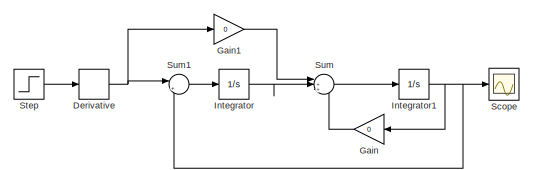
[diagram: root canvas - part 1/2, middle left region]
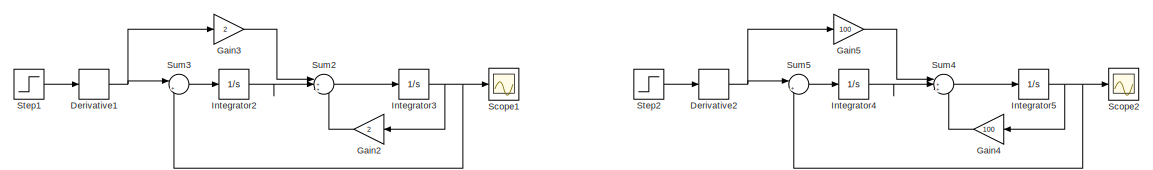
[diagram: root canvas - part 2/2, middle right region]
MODEL slx_f3005081a83c
KIND model
CONFIG AbsTol = auto
CONFIG EnableMultiTasking = off
CONFIG FixedStep = auto
CONFIG MaxStep = auto
CONFIG MinStep = auto
CONFIG RelTol = 1e-3
CONFIG SampleTimeConstraint = Unconstrained
CONFIG SolverName = VariableStepAuto
CONFIG StartTime = 0.0
CONFIG StopTime = 1
BLOCK [Derivative] Derivative
BLOCK [Derivative] Derivative1
BLOCK [Derivative] Derivative2
BLOCK [Gain] Gain
  Gain = 0
  NameLocation = top
BLOCK [Gain] Gain1
  Gain = 0
BLOCK [Gain] Gain2
  Gain = 2
  NameLocation = top
BLOCK [Gain] Gain3
  Gain = 2
BLOCK [Gain] Gain4
  Gain = 100
  NameLocation = top
BLOCK [Gain] Gain5
  Gain = 100
BLOCK [Integrator] Integrator
  Ports = [1, 1]
BLOCK [Integrator] Integrator1
  Ports = [1, 1]
BLOCK [Integrator] Integrator2
  Ports = [1, 1]
BLOCK [Integrator] Integrator3
  Ports = [1, 1]
BLOCK [Integrator] Integrator4
  Ports = [1, 1]
BLOCK [Integrator] Integrator5
  Ports = [1, 1]
BLOCK [Scope] Scope
  Floating = off
  NumInputPorts = 1
  Ports = [1]
  ScopeSpecificationString = Simulink.scopes.TimeScopeBlockCfg('CurrentConfiguration', extmgr.ConfigurationSet(extmgr.Configuration('Core','General UI',true),extmgr.Configuration('Core','Source UI',true),extmgr.Configuration('Sources','WiredSimulink',true),extmgr.Configuration('Visuals','Time Domain',true,'SerializedDisplays',{struct('MinYLimReal','-0.0084','MaxYLimReal','0.07562','YLabelReal','','MinYLimMag','0.00000','MaxYL...<+1363ch>
BLOCK [Scope] Scope1
  Floating = off
  NumInputPorts = 1
  Ports = [1]
  ScopeSpecificationString = Simulink.scopes.TimeScopeBlockCfg('CurrentConfiguration', extmgr.ConfigurationSet(extmgr.Configuration('Core','General UI',true),extmgr.Configuration('Core','Source UI',true),extmgr.Configuration('Sources','WiredSimulink',true,'DataLoggingVariableName','ScopeData1'),extmgr.Configuration('Visuals','Time Domain',true,'SerializedDisplays',{struct('MinYLimReal','-0.01998','MaxYLimReal','0.17985','YLab...<+1406ch>
BLOCK [Scope] Scope2
  Floating = off
  NumInputPorts = 1
  Ports = [1]
  ScopeSpecificationString = Simulink.scopes.TimeScopeBlockCfg('CurrentConfiguration', extmgr.ConfigurationSet(extmgr.Configuration('Core','General UI',true),extmgr.Configuration('Core','Source UI',true),extmgr.Configuration('Sources','WiredSimulink',true,'DataLoggingVariableName','ScopeData2'),extmgr.Configuration('Visuals','Time Domain',true,'SerializedDisplays',{struct('MinYLimReal','-0.99929','MaxYLimReal','8.99242','YLab...<+1405ch>
BLOCK [Step] Step
  SampleTime = 0
  Time = 0.001
BLOCK [Step] Step1
  SampleTime = 0
  Time = 0.001
BLOCK [Step] Step2
  SampleTime = 0
  Time = 0.001
BLOCK [Sum] Sum
  Inputs = |++-
  Ports = [3, 1]
BLOCK [Sum] Sum1
  Inputs = |+-
  Ports = [2, 1]
BLOCK [Sum] Sum2
  Inputs = |++-
  Ports = [3, 1]
BLOCK [Sum] Sum3
  Inputs = |+-
  Ports = [2, 1]
BLOCK [Sum] Sum4
  Inputs = |++-
  Ports = [3, 1]
BLOCK [Sum] Sum5
  Inputs = |+-
  Ports = [2, 1]
NET Derivative1:1 -> Gain3:1, Sum3:1
NET Derivative2:1 -> Gain5:1, Sum5:1
NET Derivative:1 -> Gain1:1, Sum1:1
LINE Gain1:1 -> Sum:1
LINE Gain2:1 -> Sum2:3
LINE Gain3:1 -> Sum2:1
LINE Gain4:1 -> Sum4:3
LINE Gain5:1 -> Sum4:1
LINE Gain:1 -> Sum:3
NET Integrator1:1 -> Gain:1, Scope:1, Sum1:2
LINE Integrator2:1 -> Sum2:2
NET Integrator3:1 -> Gain2:1, Scope1:1, Sum3:2
LINE Integrator4:1 -> Sum4:2
NET Integrator5:1 -> Gain4:1, Scope2:1, Sum5:2
LINE Integrator:1 -> Sum:2
LINE Step1:1 -> Derivative1:1
LINE Step2:1 -> Derivative2:1
LINE Step:1 -> Derivative:1
LINE Sum1:1 -> Integrator:1
LINE Sum2:1 -> Integrator3:1
LINE Sum3:1 -> Integrator2:1
LINE Sum4:1 -> Integrator5:1
LINE Sum5:1 -> Integrator4:1
LINE Sum:1 -> Integrator1:1
note: NET lines group one-source signal fan-out (src -> all destinations, sorted); 1:1 wires keep LINE
